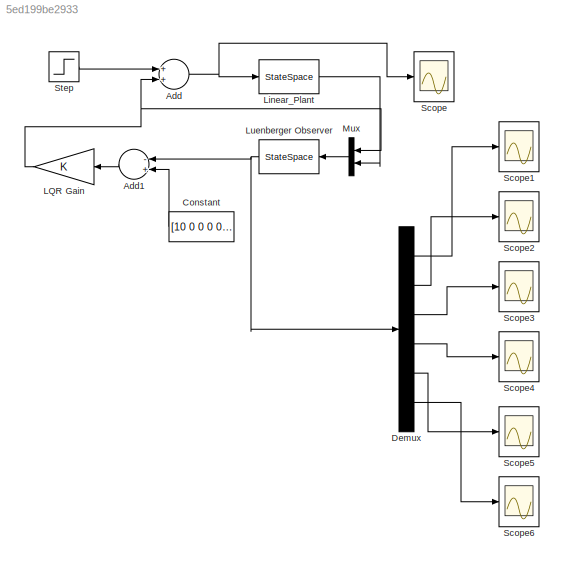
MODEL slx_5ed199be2933
KIND model
CONFIG AbsTol = auto
CONFIG FixedStep = auto
CONFIG MaxStep = auto
CONFIG MinStep = auto
CONFIG RelTol = 1e-3
CONFIG SampleTimeConstraint = Unconstrained
CONFIG Solver = VariableStepAuto
CONFIG SolverMode = Auto
CONFIG SolverName = VariableStepAuto
CONFIG StartTime = 0.0
CONFIG StopTime = 1000.0
BLOCK [Sum] Add
  InputSameDT = off
  OutDataTypeStr = Inherit: Inherit via internal rule
  Ports = [2, 1]
  SaturateOnIntegerOverflow = off
BLOCK [Sum] Add1
  InputSameDT = off
  Inputs = -+
  OutDataTypeStr = Inherit: Inherit via internal rule
  Ports = [2, 1]
  SaturateOnIntegerOverflow = off
BLOCK [Constant] Constant
  Value = [10 0 0 0 0 0]
BLOCK [Demux] Demux
  DisplayOption = bar
  Outputs = 6
  Ports = [1, 6]
BLOCK [Gain] LQR Gain
  Gain = K
  Multiplication = Matrix(K*u)
  OutDataTypeStr = Inherit: Inherit via internal rule
  ParamDataTypeStr = Inherit: Inherit via internal rule
  SaturateOnIntegerOverflow = off
BLOCK [StateSpace] Linear_Plant
  A = A
  B = B
  C = C
  D = D
  Ports = [1, 1]
  X0 = X0
BLOCK [StateSpace] Luenberger Observer
  A = AKL
  B = BL
  C = CO
  D = DO
  Ports = [1, 1]
  X0 = 0
BLOCK [Mux] Mux
  DisplayOption = bar
  Inputs = 2
  Ports = [2, 1]
BLOCK [Scope] Scope
  Ports = [1]
  ScopeSpecificationString = C++SS(StrPVP('SaveName','ScopeData1'))
BLOCK [Scope] Scope1
  Ports = [1]
  ScopeSpecificationString = C++SS(StrPVP('SaveName','ScopeData2'))
BLOCK [Scope] Scope2
  Ports = [1]
  ScopeSpecificationString = C++SS(StrPVP('SaveName','ScopeData3'))
BLOCK [Scope] Scope3
  Ports = [1]
  ScopeSpecificationString = C++SS(StrPVP('SaveName','ScopeData4'))
BLOCK [Scope] Scope4
  Ports = [1]
  ScopeSpecificationString = C++SS(StrPVP('SaveName','ScopeData5'))
BLOCK [Scope] Scope5
  Ports = [1]
  ScopeSpecificationString = C++SS(StrPVP('SaveName','ScopeData6'))
BLOCK [Scope] Scope6
  Ports = [1]
  ScopeSpecificationString = C++SS(StrPVP('SaveName','ScopeData'))
BLOCK [Step] Step
  SampleTime = 0
LINE Add1:1 -> LQR Gain:1
NET Add:1 -> Linear_Plant:1, Scope:1
LINE Constant:1 -> Add1:2
LINE Demux:1 -> Scope1:1
LINE Demux:2 -> Scope2:1
LINE Demux:3 -> Scope3:1
LINE Demux:4 -> Scope4:1
LINE Demux:5 -> Scope5:1
LINE Demux:6 -> Scope6:1
NET LQR Gain:1 -> Add:2, Mux:1
LINE Linear_Plant:1 -> Mux:2
NET Luenberger Observer:1 -> Add1:1, Demux:1
LINE Mux:1 -> Luenberger Observer:1
LINE Step:1 -> Add:1
note: NET lines group one-source signal fan-out (src -> all destinations, sorted); 1:1 wires keep LINE
